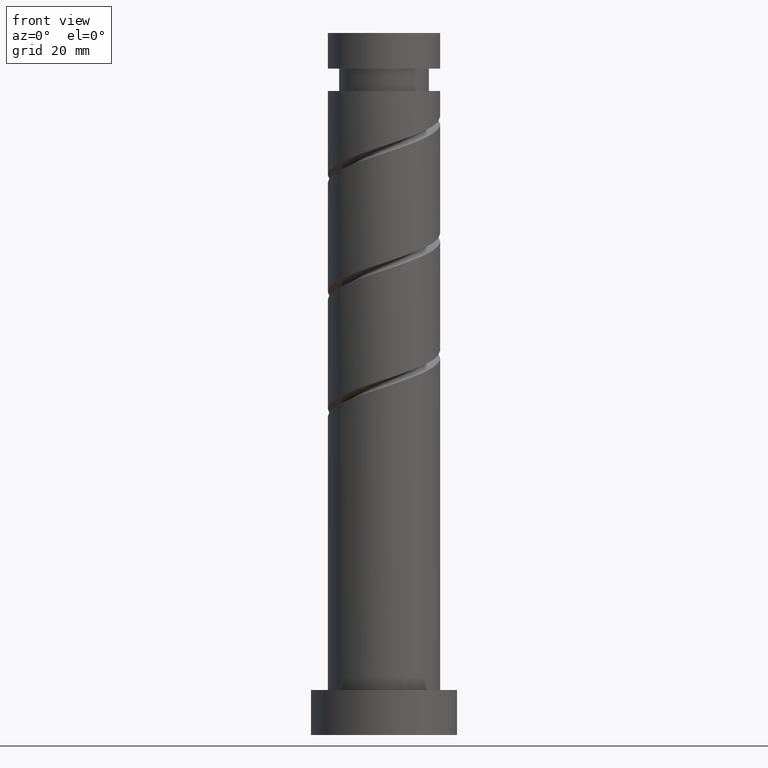
[diagram: clean part render]
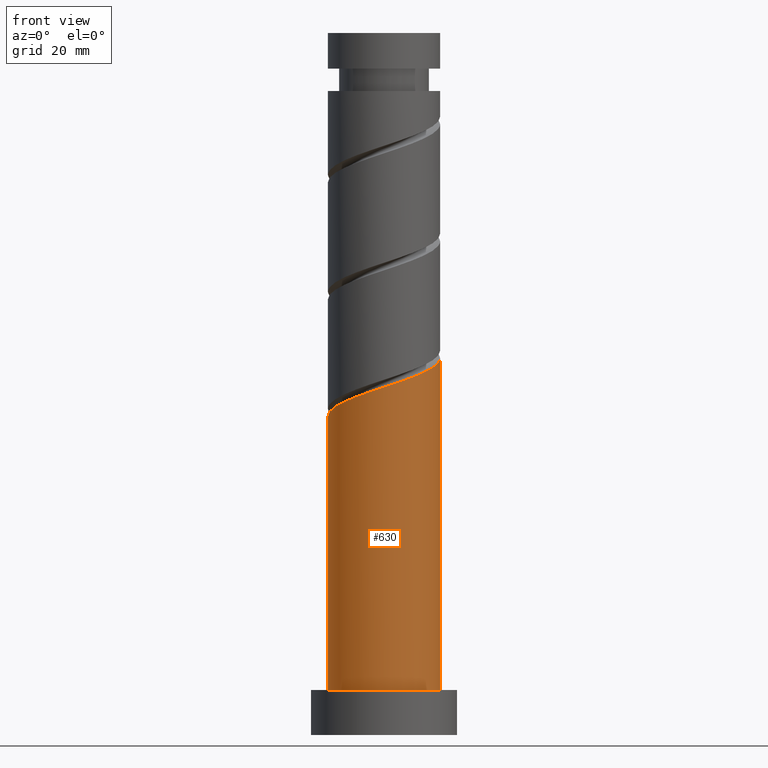
[diagram: same view with one face highlighted and labeled with its STEP entity id]
A machine part, front view. The second image highlights one B-rep face of the part: STEP entity #630.
In plain terms, the highlighted cylindrical surface (partial cylindrical patch) has radius 10 mm, axis along (-0, -0, -1).
Its self-contained STEP definition (entity closure, byte-faithful):
#63 = DIRECTION ( 'NONE',  ( -0.000000000000000000, -0.000000000000000000, -1.000000000000000000 ) ) ;
#72 = CARTESIAN_POINT ( 'NONE',  ( -1.135787973490357095, -9.935289914203560002, 61.55057990629020992 ) ) ;
#167 = VERTEX_POINT ( 'NONE', #1454 ) ;
#177 = EDGE_CURVE ( 'NONE', #1028, #753, #1418, .T. ) ;
#201 = CARTESIAN_POINT ( 'NONE',  ( 10.00000000000001599, -0.5697373744643301485, 66.94626637561268012 ) ) ;
#215 = CARTESIAN_POINT ( 'NONE',  ( -10.00000000000000178, 0.000000000000000000, 8.000000000000000000 ) ) ;
#305 = AXIS2_PLACEMENT_3D ( 'NONE', #966, #1569, #1443 ) ;
#315 = CARTESIAN_POINT ( 'NONE',  ( 10.00000000000000178, 1.224646799147353454E-15, 8.000000000000000000 ) ) ;
#334 = CARTESIAN_POINT ( 'NONE',  ( 0.000000000000000000, 0.000000000000000000, 8.000000000000000000 ) ) ;
#336 = CARTESIAN_POINT ( 'NONE',  ( 8.440690085044266766, -5.591360655683670799, 65.19641323962353852 ) ) ;
#517 = ORIENTED_EDGE ( 'NONE', *, *, #177, .T. ) ;
#556 = CARTESIAN_POINT ( 'NONE',  ( -2.709383306013497528, -9.755398771694949289, 61.02974657295688132 ) ) ;
#565 = CARTESIAN_POINT ( 'NONE',  ( 1.989974874213242151, -9.800000000000016698, 62.59224657295686711 ) ) ;
#626 = FACE_OUTER_BOUND ( 'NONE', #746, .T. ) ;
#630 = ADVANCED_FACE ( 'NONE', ( #626 ), #714, .T. ) ;
#632 = CARTESIAN_POINT ( 'NONE',  ( 10.00000000000000178, 1.224646799147353454E-15, 125.0000000000000000 ) ) ;
#680 = LINE ( 'NONE', #1062, #842 ) ;
#702 = VERTEX_POINT ( 'NONE', #1398 ) ;
#714 = CYLINDRICAL_SURFACE ( 'NONE', #305, 10.00000000000000178 ) ;
#737 = VECTOR ( 'NONE', #1127, 1000.000000000000000 ) ;
#746 = EDGE_LOOP ( 'NONE', ( #970, #1307, #1240, #517 ) ) ;
#753 = VERTEX_POINT ( 'NONE', #315 ) ;
#773 = CARTESIAN_POINT ( 'NONE',  ( -10.00000000000001776, -1.005037815259216982, 57.05341537356112269 ) ) ;
#791 = CARTESIAN_POINT ( 'NONE',  ( 9.755398771694949289, -2.709383306013498416, 66.23807990629019571 ) ) ;
#802 = CARTESIAN_POINT ( 'NONE',  ( 4.920945116258622853, -8.705417805181483004, 63.63391323962354562 ) ) ;
#842 = VECTOR ( 'NONE', #63, 1000.000000000000000 ) ;
#899 = CARTESIAN_POINT ( 'NONE',  ( -10.00000000000001954, -1.019530989257991794E-14, 56.71911079815327383 ) ) ;
#908 = CARTESIAN_POINT ( 'NONE',  ( -9.484818943287860904, -3.542142389393699631, 57.90474657295685290 ) ) ;
#941 = AXIS2_PLACEMENT_3D ( 'NONE', #334, #1080, #1572 ) ;
#955 = CARTESIAN_POINT ( 'NONE',  ( -7.926016667075098887, -6.299747843123544300, 58.94641323962354562 ) ) ;
#966 = CARTESIAN_POINT ( 'NONE',  ( 0.000000000000000000, 0.000000000000000000, 125.0000000000000000 ) ) ;
#970 = ORIENTED_EDGE ( 'NONE', *, *, #1300, .F. ) ;
#1028 = VERTEX_POINT ( 'NONE', #215 ) ;
#1062 = CARTESIAN_POINT ( 'NONE',  ( -10.00000000000000178, 0.000000000000000000, 125.0000000000000000 ) ) ;
#1080 = DIRECTION ( 'NONE',  ( 0.000000000000000000, 0.000000000000000000, 1.000000000000000000 ) ) ;
#1101 =( BOUNDED_CURVE ( )  B_SPLINE_CURVE ( 2, ( #899, #773, #1267, #908, #1426, #955, #1162, #1408, #1433, #556, #72, #1304, #565, #1283, #802, #1400, #1315, #336, #1337, #791, #1180, #201, #1189 ),
 .UNSPECIFIED., .F., .T. ) 
 B_SPLINE_CURVE_WITH_KNOTS ( ( 3, 2, 2, 2, 2, 2, 2, 2, 2, 2, 2, 3 ),
 ( 0.05453220231385523531, 0.06250000000000000000, 0.07499999999999995559, 0.08750000000000002220, 0.09999999999999997780, 0.1125000000000000444, 0.1250000000000000000, 0.1374999999999999556, 0.1500000000000000222, 0.1624999999999999778, 0.1750000000000000444, 0.1795322023138552214 ),
 .UNSPECIFIED. ) 
 CURVE ( )  GEOMETRIC_REPRESENTATION_ITEM ( )  RATIONAL_B_SPLINE_CURVE ( ( 0.9039174447099376231, 0.9019565955404671431, 0.9090909090909153889, 0.8978984914501316750, 0.9090909090909153889, 0.8978984914501316750, 0.9090909090909153889, 0.8978984914501316750, 0.9090909090909153889, 0.8978984914501316750, 0.9090909090909153889, 0.8978984914501316750, 0.9090909090909153889, 0.8978984914501316750, 0.9090909090909153889, 0.8978984914501316750, 0.9090909090909153889, 0.8978984914501316750, 0.9090909090909153889, 0.8978984914501316750, 0.9090909090909153889, 0.9050328050005798097, 0.9039174447099376231 ) ) 
 REPRESENTATION_ITEM ( '' )  );
#1127 = DIRECTION ( 'NONE',  ( -0.000000000000000000, -0.000000000000000000, -1.000000000000000000 ) ) ;
#1162 = CARTESIAN_POINT ( 'NONE',  ( -6.758688661379384399, -7.370218964083909086, 59.46724657295688132 ) ) ;
#1180 = CARTESIAN_POINT ( 'NONE',  ( 9.935289914203560002, -1.135787973490358427, 66.75891323962355273 ) ) ;
#1189 = CARTESIAN_POINT ( 'NONE',  ( 10.00000000000001954, 8.815944436524987467E-15, 67.13577746481995234 ) ) ;
#1240 = ORIENTED_EDGE ( 'NONE', *, *, #1434, .T. ) ;
#1244 = LINE ( 'NONE', #632, #737 ) ;
#1267 = CARTESIAN_POINT ( 'NONE',  ( -9.800000000000016698, -1.989974874213243261, 57.38391323962353141 ) ) ;
#1283 = CARTESIAN_POINT ( 'NONE',  ( 3.542142389393699187, -9.484818943287860904, 63.11307990629019571 ) ) ;
#1300 = EDGE_CURVE ( 'NONE', #702, #753, #1244, .T. ) ;
#1304 = CARTESIAN_POINT ( 'NONE',  ( 0.4378073590327832276, -10.11518105671217072, 62.07141323962351009 ) ) ;
#1307 = ORIENTED_EDGE ( 'NONE', *, *, #1367, .F. ) ;
#1315 = CARTESIAN_POINT ( 'NONE',  ( 7.370218964083909086, -6.758688661379384399, 64.67557990629020992 ) ) ;
#1337 = CARTESIAN_POINT ( 'NONE',  ( 9.098044428369613357, -4.150371980848586162, 65.71724657295688132 ) ) ;
#1367 = EDGE_CURVE ( 'NONE', #167, #702, #1101, .T. ) ;
#1398 = CARTESIAN_POINT ( 'NONE',  ( 10.00000000000001776, 8.815944436524987467E-15, 67.13577746481995234 ) ) ;
#1400 = CARTESIAN_POINT ( 'NONE',  ( 6.299747843123542523, -7.926016667075098887, 64.15474657295686711 ) ) ;
#1408 = CARTESIAN_POINT ( 'NONE',  ( -5.591360655683670799, -8.440690085044266766, 59.98807990629019571 ) ) ;
#1418 = CIRCLE ( 'NONE', #941, 10.00000000000000178 ) ;
#1426 = CARTESIAN_POINT ( 'NONE',  ( -8.705417805181483004, -4.920945116258623742, 58.42557990629020992 ) ) ;
#1433 = CARTESIAN_POINT ( 'NONE',  ( -4.150371980848586162, -9.098044428369613357, 60.50891323962353852 ) ) ;
#1434 = EDGE_CURVE ( 'NONE', #167, #1028, #680, .T. ) ;
#1443 = DIRECTION ( 'NONE',  ( -1.000000000000000000, 0.000000000000000000, 0.000000000000000000 ) ) ;
#1454 = CARTESIAN_POINT ( 'NONE',  ( -10.00000000000001776, -1.019530989257991794E-14, 56.71911079815327383 ) ) ;
#1569 = DIRECTION ( 'NONE',  ( -0.000000000000000000, -0.000000000000000000, -1.000000000000000000 ) ) ;
#1572 = DIRECTION ( 'NONE',  ( 1.000000000000000000, 0.000000000000000000, 0.000000000000000000 ) ) ;